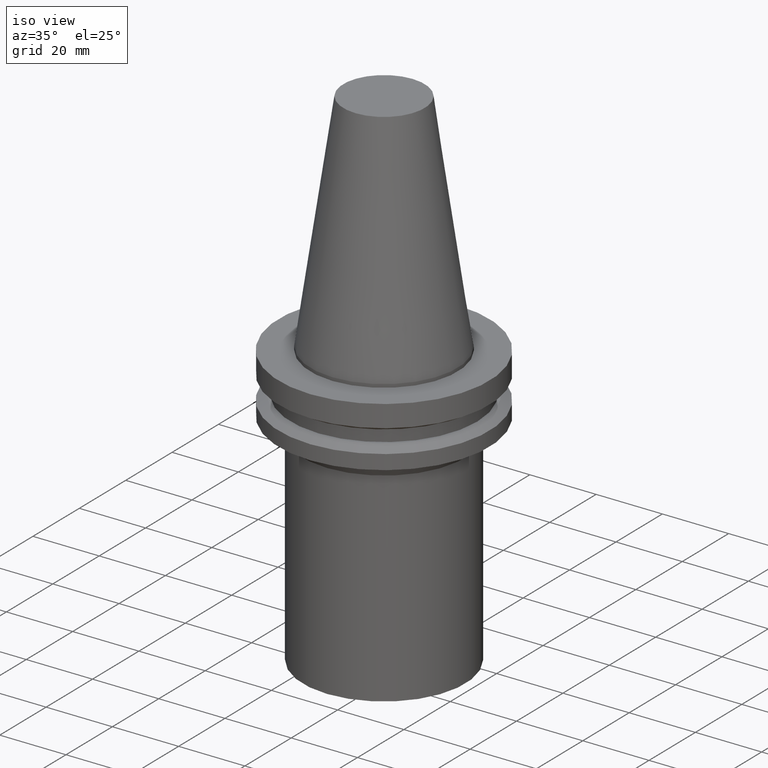
[diagram: clean part render]
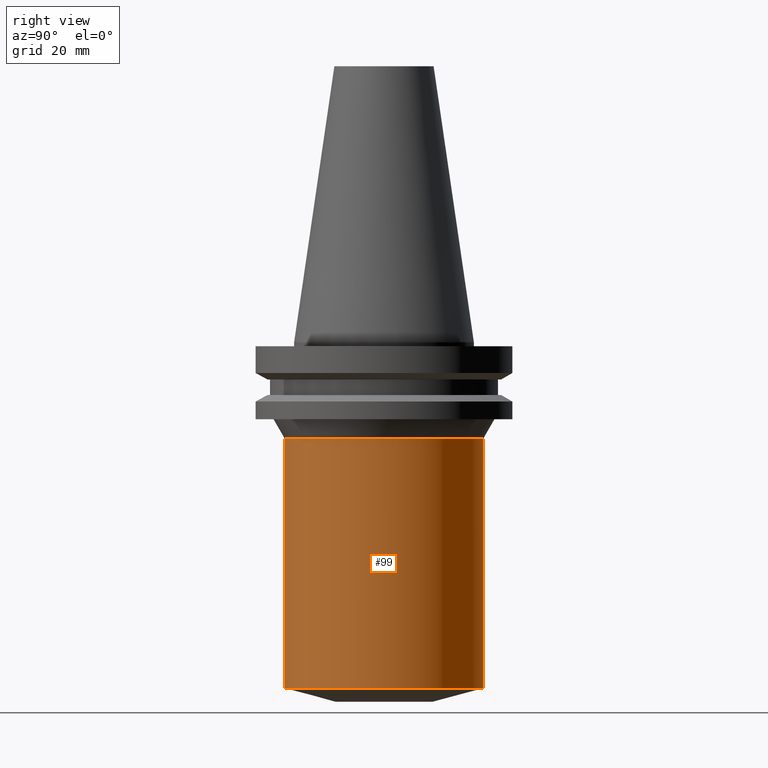
[diagram: tour spotlight — one face highlighted and labeled with its STEP entity id]
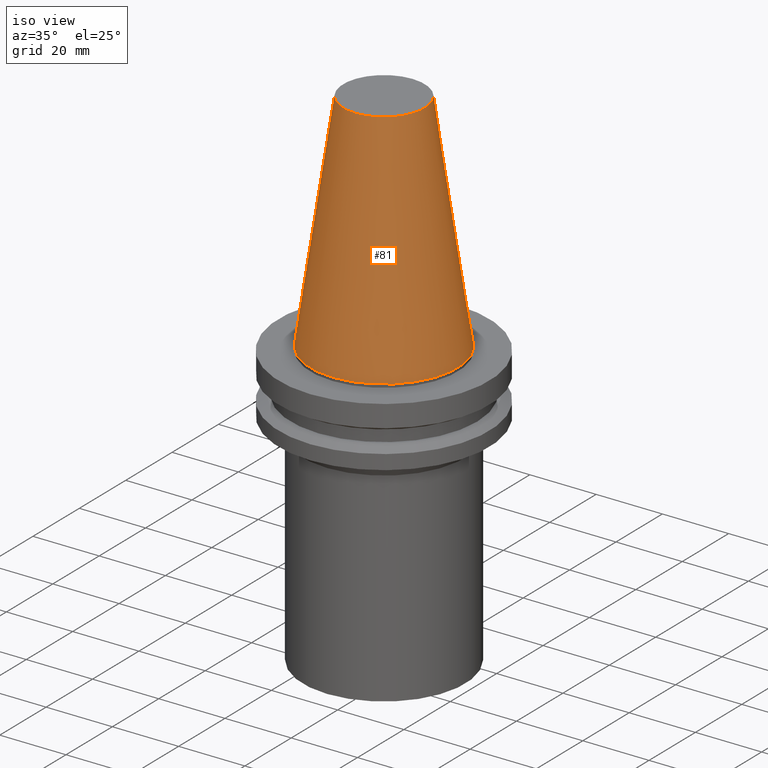
[diagram: tour spotlight — one face highlighted and labeled with its STEP entity id]
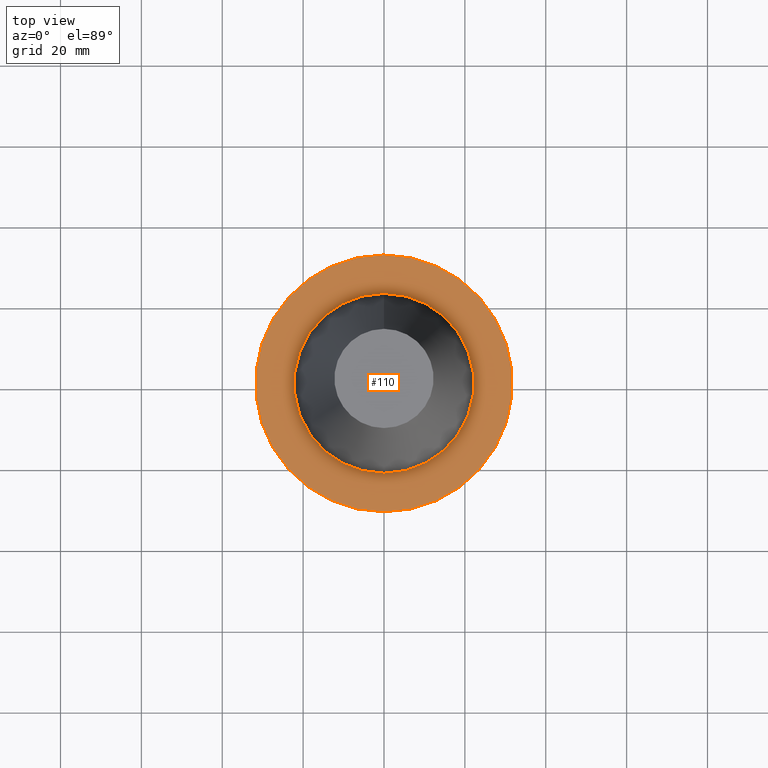
[diagram: tour spotlight — one face highlighted and labeled with its STEP entity id]
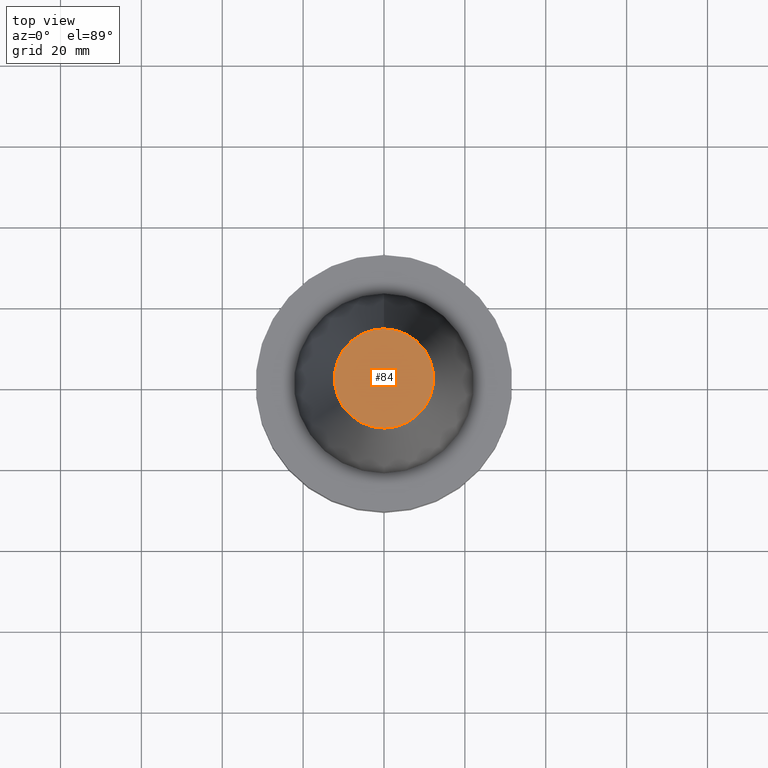
[diagram: tour spotlight — one face highlighted and labeled with its STEP entity id]
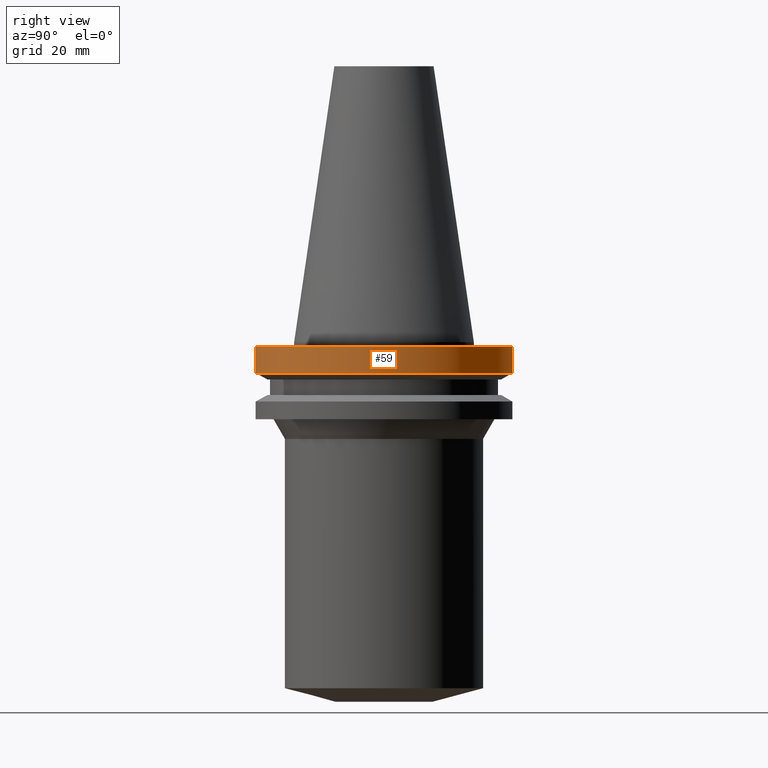
[diagram: tour spotlight — one face highlighted and labeled with its STEP entity id]
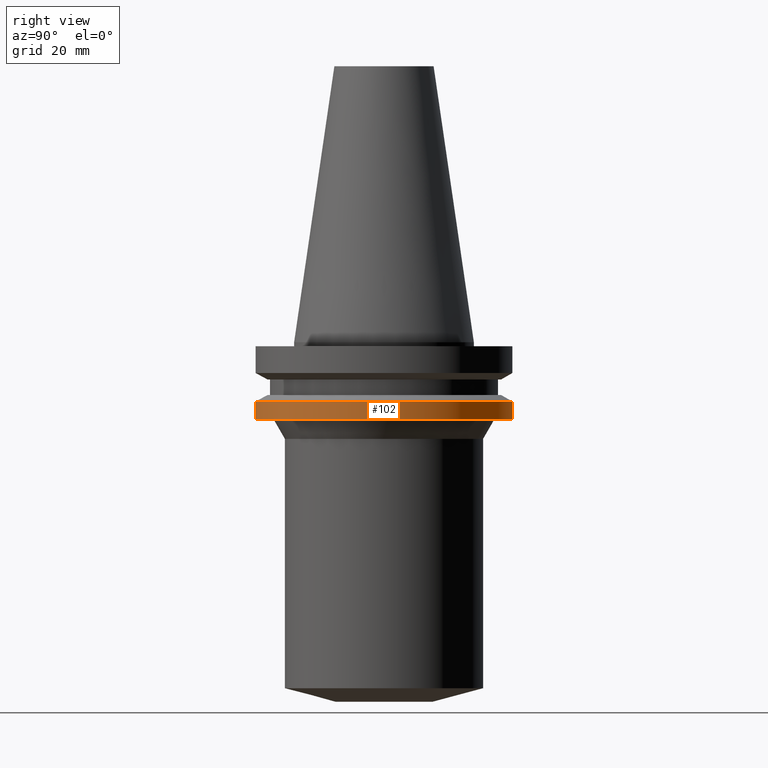
[diagram: tour spotlight — one face highlighted and labeled with its STEP entity id]
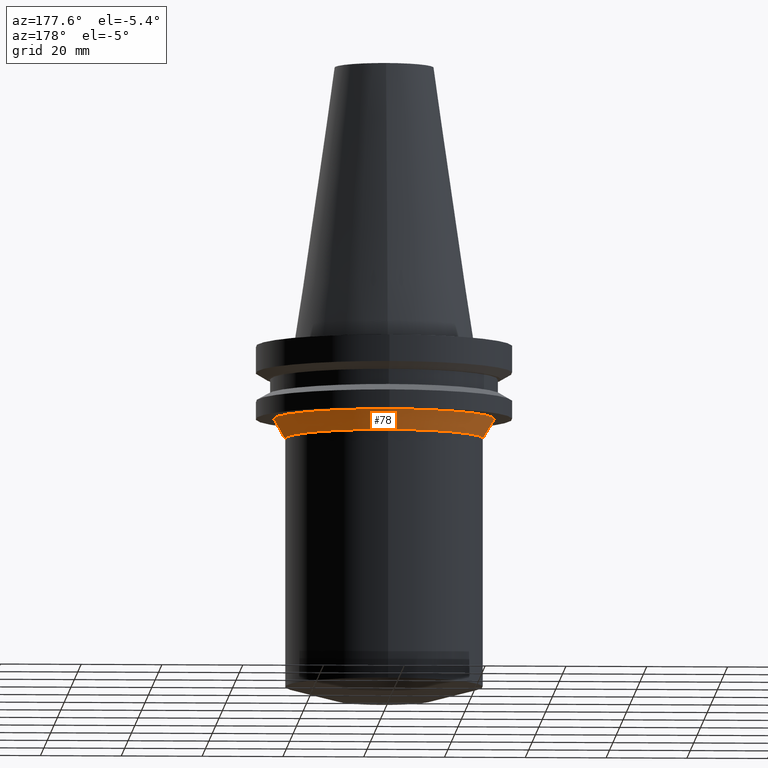
[diagram: tour spotlight — one face highlighted and labeled with its STEP entity id]
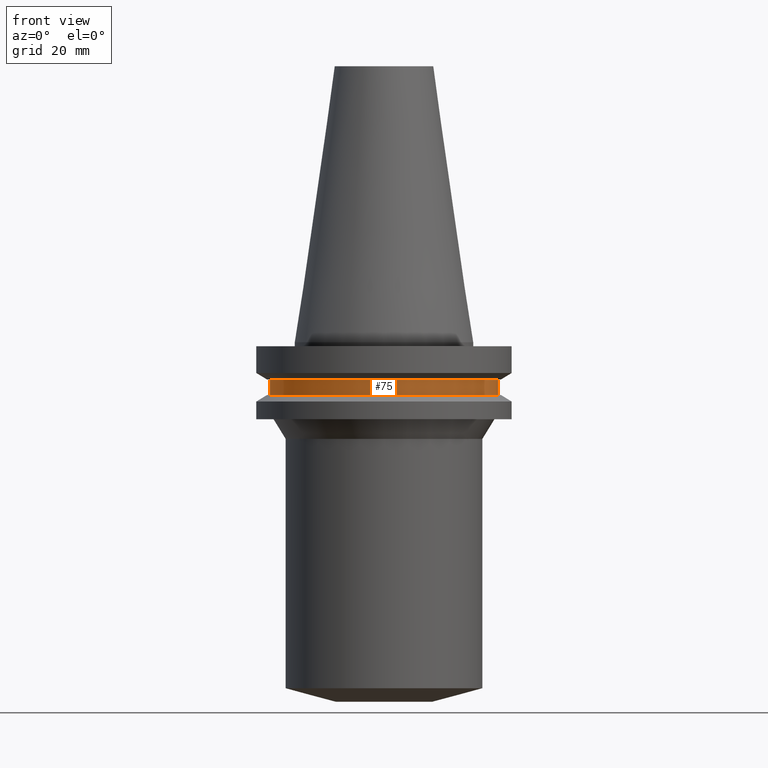
[diagram: tour spotlight — one face highlighted and labeled with its STEP entity id]
A machine part: a face-by-face anatomy tour. The part has 16 B-rep faces; the first image is the clean iso view, then the 8 largest visible faces are spotlighted one at a time (largest first), each with its STEP entity span.

Face 1 — right view, entity #99. In plain terms, the highlighted cylindrical surface (bore or boss wall) has radius 24.5 mm, axis along (0, 0, -1).
Definition (entity closure, byte-faithful):
#56=EDGE_CURVE('Unnamed[1]',#153,#153,#154,.T.);
#63=EDGE_CURVE('Unnamed[1]',#164,#164,#165,.T.);
#99=ADVANCED_FACE('Unnamed[1]',(#220,#221),#222,.T.);
#153=VERTEX_POINT('',#286);
#154=CIRCLE('',#287,24.5000000000176);
#164=VERTEX_POINT('',#300);
#165=CIRCLE('',#301,24.5000000000476);
#220=FACE_BOUND('',#370,.T.);
#221=FACE_BOUND('',#371,.T.);
#222=CYLINDRICAL_SURFACE('',#372,24.5000000000326);
#286=CARTESIAN_POINT('',(1.46345292497885E-015,24.5000000000176,-23.8999999999635));
#287=AXIS2_PLACEMENT_3D('',#442,#443,#444);
#300=CARTESIAN_POINT('',(5.23846557168079E-015,24.5000000000476,-85.5506350945924));
#301=AXIS2_PLACEMENT_3D('',#454,#455,#456);
#370=EDGE_LOOP('',(#517));
#371=EDGE_LOOP('',(#518));
#372=AXIS2_PLACEMENT_3D('',#519,#520,#521);
#442=CARTESIAN_POINT('',(1.46345292497885E-015,2.9269058499577E-015,-23.8999999999635));
#443=DIRECTION('',(6.12323399573677E-017,1.22464679914735E-016,-1.0));
#444=DIRECTION('',(-1.23259516440783E-032,1.0,1.22464679914735E-016));
#454=CARTESIAN_POINT('',(5.23846557168079E-015,1.04769311433616E-014,-85.5506350945924));
#455=DIRECTION('',(6.12323399573677E-017,1.22464679914735E-016,-1.0));
#456=DIRECTION('',(-1.23259516440783E-032,1.0,1.22464679914735E-016));
#517=ORIENTED_EDGE('',*,*,#63,.F.);
#518=ORIENTED_EDGE('',*,*,#56,.T.);
#519=CARTESIAN_POINT('',(3.35095924832982E-015,6.70191849665964E-015,-54.7253175472779));
#520=DIRECTION('',(6.12323399573677E-017,1.22464679914735E-016,-1.0));
#521=DIRECTION('',(-1.23259516440783E-032,1.0,1.22464679914735E-016));

Face 2 — iso view, entity #81. In plain terms, the highlighted conical surface has half-angle 8.297 deg.
Definition (entity closure, byte-faithful):
#68=EDGE_CURVE('Unnamed[1]',#172,#172,#173,.T.);
#81=ADVANCED_FACE('Unnamed[1]',(#192,#193),#194,.T.);
#120=EDGE_CURVE('Unnamed[1]',#254,#254,#255,.T.);
#172=VERTEX_POINT('',#310);
#173=CIRCLE('',#311,22.225);
#192=FACE_BOUND('',#335,.T.);
#193=FACE_BOUND('',#336,.T.);
#194=CONICAL_SURFACE('',#337,17.2484375007384,0.144812498217751);
#254=VERTEX_POINT('',#412);
#255=CIRCLE('',#413,12.2718750014769);
#310=CARTESIAN_POINT('',(-2.73944275289641E-031,22.225,2.72177751110499E-015));
#311=AXIS2_PLACEMENT_3D('',#463,#464,#465);
#335=EDGE_LOOP('',(#485));
#336=EDGE_LOOP('',(#486));
#337=AXIS2_PLACEMENT_3D('',#487,#488,#489);
#412=CARTESIAN_POINT('',(-4.17910720209034E-015,12.2718750014769,68.25));
#413=AXIS2_PLACEMENT_3D('',#557,#558,#559);
#463=CARTESIAN_POINT('',(0.0,0.0,0.0));
#464=DIRECTION('',(6.12323399573677E-017,1.22464679914735E-016,-1.0));
#465=DIRECTION('',(-1.23259516440783E-032,1.0,1.22464679914735E-016));
#485=ORIENTED_EDGE('',*,*,#68,.F.);
#486=ORIENTED_EDGE('',*,*,#120,.T.);
#487=CARTESIAN_POINT('',(-2.08955360104517E-015,-4.17910720209034E-015,34.125));
#488=DIRECTION('',(6.12323399573677E-017,1.22464679914735E-016,-1.0));
#489=DIRECTION('',(-1.23259516440783E-032,1.0,1.22464679914735E-016));
#557=CARTESIAN_POINT('',(-4.17910720209034E-015,-8.35821440418068E-015,68.25));
#558=DIRECTION('',(6.12323399573677E-017,1.22464679914735E-016,-1.0));
#559=DIRECTION('',(-1.23259516440783E-032,1.0,1.22464679914735E-016));

Face 3 — top view, entity #110. In plain terms, the highlighted planar face has unit normal (-0, -0, 1).
Definition (entity closure, byte-faithful):
#61=EDGE_CURVE('Unnamed[1]',#161,#161,#162,.T.);
#110=ADVANCED_FACE('Unnamed[1]',(#237,#238),#239,.T.);
#127=EDGE_CURVE('Unnamed[1]',#265,#265,#266,.T.);
#161=VERTEX_POINT('',#296);
#162=CIRCLE('',#297,22.225);
#237=FACE_OUTER_BOUND('',#391,.T.);
#238=FACE_BOUND('',#392,.T.);
#239=PLANE('',#393);
#265=VERTEX_POINT('',#426);
#266=CIRCLE('',#427,31.75);
#296=CARTESIAN_POINT('',(6.12323399573674E-017,22.225,-0.999999999999997));
#297=AXIS2_PLACEMENT_3D('',#451,#452,#453);
#391=EDGE_LOOP('',(#537));
#392=EDGE_LOOP('',(#538));
#393=AXIS2_PLACEMENT_3D('',#539,#540,#541);
#426=CARTESIAN_POINT('',(6.12323399573673E-017,31.75,-0.999999999999996));
#427=AXIS2_PLACEMENT_3D('',#569,#570,#571);
#451=CARTESIAN_POINT('',(6.12323399573677E-017,1.22464679914735E-016,-1.0));
#452=DIRECTION('',(6.12323399573677E-017,1.22464679914735E-016,-1.0));
#453=DIRECTION('',(-1.23259516440783E-032,1.0,1.22464679914735E-016));
#537=ORIENTED_EDGE('',*,*,#127,.F.);
#538=ORIENTED_EDGE('',*,*,#61,.T.);
#539=CARTESIAN_POINT('',(6.12323399573673E-017,26.9875,-0.999999999999997));
#540=DIRECTION('',(-6.12323399573677E-017,-1.22464679914735E-016,1.0));
#541=DIRECTION('',(1.23259516440783E-032,-1.0,-1.22464679914735E-016));
#569=CARTESIAN_POINT('',(6.12323399573677E-017,1.22464679914735E-016,-1.0));
#570=DIRECTION('',(6.12323399573677E-017,1.22464679914735E-016,-1.0));
#571=DIRECTION('',(-1.23259516440783E-032,1.0,1.22464679914735E-016));

Face 4 — top view, entity #84. In plain terms, the highlighted planar face has unit normal (-0, -0, 1).
Definition (entity closure, byte-faithful):
#84=ADVANCED_FACE('Unnamed[1]',(#197),#198,.T.);
#120=EDGE_CURVE('Unnamed[1]',#254,#254,#255,.T.);
#197=FACE_OUTER_BOUND('',#341,.T.);
#198=PLANE('',#342);
#254=VERTEX_POINT('',#412);
#255=CIRCLE('',#413,12.2718750014769);
#341=EDGE_LOOP('',(#491));
#342=AXIS2_PLACEMENT_3D('',#492,#493,#494);
#412=CARTESIAN_POINT('',(-4.17910720209034E-015,12.2718750014769,68.25));
#413=AXIS2_PLACEMENT_3D('',#557,#558,#559);
#491=ORIENTED_EDGE('',*,*,#120,.F.);
#492=CARTESIAN_POINT('',(-4.17910720209034E-015,6.13593750073843,68.25));
#493=DIRECTION('',(-6.12323399573677E-017,-1.22464679914735E-016,1.0));
#494=DIRECTION('',(1.23259516440783E-032,-1.0,-1.22464679914735E-016));
#557=CARTESIAN_POINT('',(-4.17910720209034E-015,-8.35821440418068E-015,68.25));
#558=DIRECTION('',(6.12323399573677E-017,1.22464679914735E-016,-1.0));
#559=DIRECTION('',(-1.23259516440783E-032,1.0,1.22464679914735E-016));

Face 5 — right view, entity #59. In plain terms, the highlighted cylindrical surface (bore or boss wall) has radius 31.75 mm, axis along (0, 0, -1).
Definition (entity closure, byte-faithful):
#59=ADVANCED_FACE('Unnamed[1]',(#157,#158),#159,.T.);
#96=EDGE_CURVE('Unnamed[1]',#216,#216,#217,.T.);
#127=EDGE_CURVE('Unnamed[1]',#265,#265,#266,.T.);
#157=FACE_BOUND('',#291,.T.);
#158=FACE_BOUND('',#292,.T.);
#159=CYLINDRICAL_SURFACE('',#293,31.75);
#216=VERTEX_POINT('',#365);
#217=CIRCLE('',#366,31.75);
#265=VERTEX_POINT('',#426);
#266=CIRCLE('',#427,31.75);
#291=EDGE_LOOP('',(#446));
#292=EDGE_LOOP('',(#447));
#293=AXIS2_PLACEMENT_3D('',#448,#449,#450);
#365=CARTESIAN_POINT('',(4.65416804298617E-016,31.75,-7.60083323));
#366=AXIS2_PLACEMENT_3D('',#513,#514,#515);
#426=CARTESIAN_POINT('',(6.12323399573673E-017,31.75,-0.999999999999996));
#427=AXIS2_PLACEMENT_3D('',#569,#570,#571);
#446=ORIENTED_EDGE('',*,*,#96,.F.);
#447=ORIENTED_EDGE('',*,*,#127,.T.);
#448=CARTESIAN_POINT('',(2.63324572127992E-016,5.26649144255985E-016,-4.300416615));
#449=DIRECTION('',(6.12323399573677E-017,1.22464679914735E-016,-1.0));
#450=DIRECTION('',(-1.23259516440783E-032,1.0,1.22464679914735E-016));
#513=CARTESIAN_POINT('',(4.65416804298617E-016,9.30833608597234E-016,-7.60083323000001));
#514=DIRECTION('',(6.12323399573677E-017,1.22464679914735E-016,-1.0));
#515=DIRECTION('',(-1.23259516440783E-032,1.0,1.22464679914735E-016));
#569=CARTESIAN_POINT('',(6.12323399573677E-017,1.22464679914735E-016,-1.0));
#570=DIRECTION('',(6.12323399573677E-017,1.22464679914735E-016,-1.0));
#571=DIRECTION('',(-1.23259516440783E-032,1.0,1.22464679914735E-016));

Face 6 — right view, entity #102. In plain terms, the highlighted cylindrical surface (bore or boss wall) has radius 31.75 mm, axis along (0, 0, -1).
Definition (entity closure, byte-faithful):
#72=EDGE_CURVE('Unnamed[1]',#178,#178,#179,.T.);
#102=ADVANCED_FACE('Unnamed[1]',(#225,#226),#227,.T.);
#125=EDGE_CURVE('Unnamed[1]',#262,#262,#263,.T.);
#178=VERTEX_POINT('',#318);
#179=CIRCLE('',#319,31.75);
#225=FACE_BOUND('',#376,.T.);
#226=FACE_BOUND('',#377,.T.);
#227=CYLINDRICAL_SURFACE('',#378,31.75);
#262=VERTEX_POINT('',#422);
#263=CIRCLE('',#423,31.75);
#318=CARTESIAN_POINT('',(1.16647607618785E-015,31.75,-19.05));
#319=AXIS2_PLACEMENT_3D('',#469,#470,#471);
#376=EDGE_LOOP('',(#523));
#377=EDGE_LOOP('',(#524));
#378=AXIS2_PLACEMENT_3D('',#525,#526,#527);
#422=CARTESIAN_POINT('',(8.97247689112643E-016,31.75,-14.65316677));
#423=AXIS2_PLACEMENT_3D('',#566,#567,#568);
#469=CARTESIAN_POINT('',(1.16647607618785E-015,2.33295215237571E-015,-19.05));
#470=DIRECTION('',(6.12323399573677E-017,1.22464679914735E-016,-1.0));
#471=DIRECTION('',(-1.23259516440783E-032,1.0,1.22464679914735E-016));
#523=ORIENTED_EDGE('',*,*,#72,.F.);
#524=ORIENTED_EDGE('',*,*,#125,.T.);
#525=CARTESIAN_POINT('',(1.03186188265025E-015,2.0637237653005E-015,-16.851583385));
#526=DIRECTION('',(6.12323399573677E-017,1.22464679914735E-016,-1.0));
#527=DIRECTION('',(-1.23259516440783E-032,1.0,1.22464679914735E-016));
#566=CARTESIAN_POINT('',(8.97247689112643E-016,1.79449537822529E-015,-14.65316677));
#567=DIRECTION('',(6.12323399573677E-017,1.22464679914735E-016,-1.0));
#568=DIRECTION('',(-1.23259516440783E-032,1.0,1.22464679914735E-016));

Face 7 — auxiliary view, entity #78. In plain terms, the highlighted conical surface has half-angle 30 deg.
Definition (entity closure, byte-faithful):
#56=EDGE_CURVE('Unnamed[1]',#153,#153,#154,.T.);
#78=ADVANCED_FACE('Unnamed[1]',(#187,#188),#189,.T.);
#94=EDGE_CURVE('Unnamed[1]',#213,#213,#214,.T.);
#153=VERTEX_POINT('',#286);
#154=CIRCLE('',#287,24.5000000000176);
#187=FACE_BOUND('',#329,.T.);
#188=FACE_BOUND('',#330,.T.);
#189=CONICAL_SURFACE('',#331,25.9000744027908,0.523598775597958);
#213=VERTEX_POINT('',#361);
#214=CIRCLE('',#362,27.300148805564);
#286=CARTESIAN_POINT('',(1.46345292497885E-015,24.5000000000176,-23.8999999999635));
#287=AXIS2_PLACEMENT_3D('',#442,#443,#444);
#329=EDGE_LOOP('',(#479));
#330=EDGE_LOOP('',(#480));
#331=AXIS2_PLACEMENT_3D('',#481,#482,#483);
#361=CARTESIAN_POINT('',(1.16647607618785E-015,27.300148805564,-19.05));
#362=AXIS2_PLACEMENT_3D('',#510,#511,#512);
#442=CARTESIAN_POINT('',(1.46345292497885E-015,2.9269058499577E-015,-23.8999999999635));
#443=DIRECTION('',(6.12323399573677E-017,1.22464679914735E-016,-1.0));
#444=DIRECTION('',(-1.23259516440783E-032,1.0,1.22464679914735E-016));
#479=ORIENTED_EDGE('',*,*,#56,.F.);
#480=ORIENTED_EDGE('',*,*,#94,.T.);
#481=CARTESIAN_POINT('',(1.31496450058335E-015,2.6299290011667E-015,-21.4749999999817));
#482=DIRECTION('',(-6.12323399573677E-017,-1.22464679914735E-016,1.0));
#483=DIRECTION('',(-1.23259516440783E-032,1.0,1.22464679914735E-016));
#510=CARTESIAN_POINT('',(1.16647607618785E-015,2.33295215237571E-015,-19.05));
#511=DIRECTION('',(6.12323399573677E-017,1.22464679914735E-016,-1.0));
#512=DIRECTION('',(-1.23259516440783E-032,1.0,1.22464679914735E-016));

Face 8 — front view, entity #75. In plain terms, the highlighted cylindrical surface (bore or boss wall) has radius 28.18 mm, axis along (0, 0, -1).
Definition (entity closure, byte-faithful):
#75=ADVANCED_FACE('Unnamed[1]',(#182,#183),#184,.T.);
#107=EDGE_CURVE('Unnamed[1]',#233,#233,#234,.T.);
#129=EDGE_CURVE('Unnamed[1]',#268,#268,#269,.T.);
#182=FACE_BOUND('',#323,.T.);
#183=FACE_BOUND('',#324,.T.);
#184=CYLINDRICAL_SURFACE('',#325,28.18);
#233=VERTEX_POINT('',#386);
#234=CIRCLE('',#387,28.18);
#268=VERTEX_POINT('',#430);
#269=CIRCLE('',#431,28.18);
#323=EDGE_LOOP('',(#473));
#324=EDGE_LOOP('',(#474));
#325=AXIS2_PLACEMENT_3D('',#475,#476,#477);
#386=CARTESIAN_POINT('',(5.63337527607782E-016,28.18,-9.2));
#387=AXIS2_PLACEMENT_3D('',#533,#534,#535);
#430=CARTESIAN_POINT('',(7.98469713044073E-016,28.18,-13.04));
#431=AXIS2_PLACEMENT_3D('',#572,#573,#574);
#473=ORIENTED_EDGE('',*,*,#129,.F.);
#474=ORIENTED_EDGE('',*,*,#107,.T.);
#475=CARTESIAN_POINT('',(6.80903620325929E-016,1.36180724065186E-015,-11.12));
#476=DIRECTION('',(6.12323399573677E-017,1.22464679914735E-016,-1.0));
#477=DIRECTION('',(-1.23259516440783E-032,1.0,1.22464679914735E-016));
#533=CARTESIAN_POINT('',(5.63337527607783E-016,1.12667505521557E-015,-9.2));
#534=DIRECTION('',(6.12323399573677E-017,1.22464679914735E-016,-1.0));
#535=DIRECTION('',(-1.23259516440783E-032,1.0,1.22464679914735E-016));
#572=CARTESIAN_POINT('',(7.98469713044074E-016,1.59693942608815E-015,-13.04));
#573=DIRECTION('',(6.12323399573677E-017,1.22464679914735E-016,-1.0));
#574=DIRECTION('',(-1.23259516440783E-032,1.0,1.22464679914735E-016));